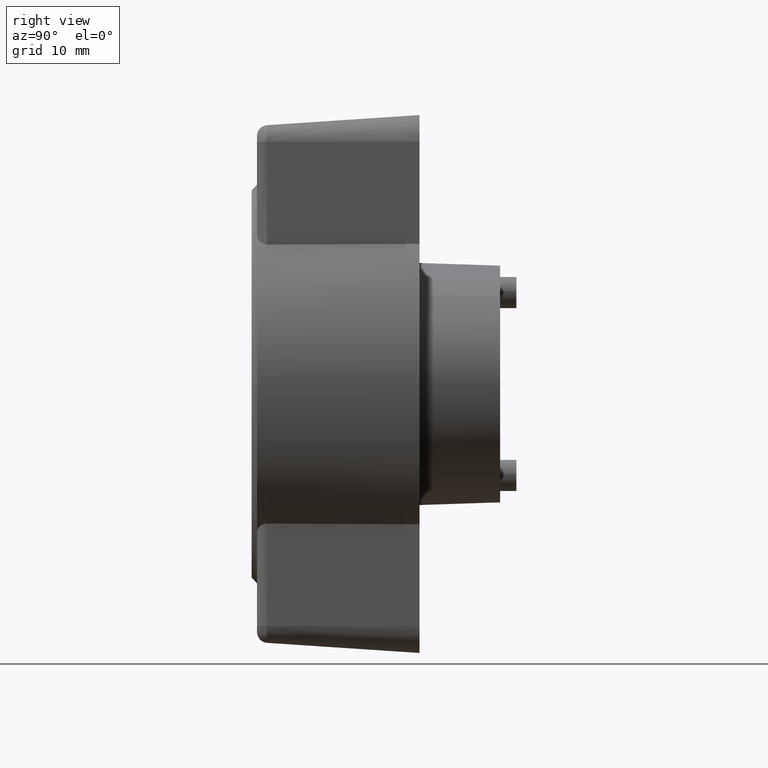
[diagram: clean part render]
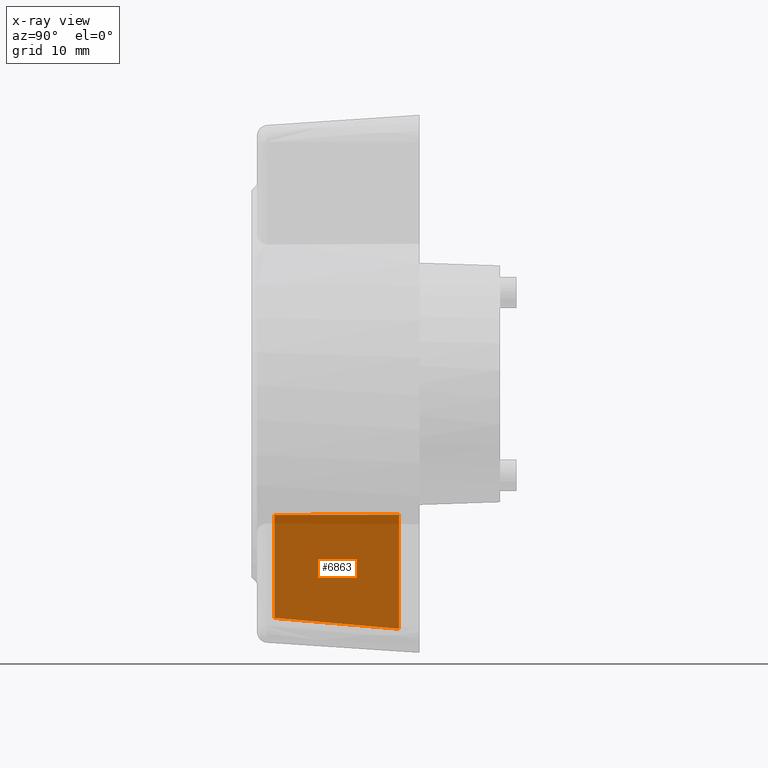
[diagram: x-ray — body ghosted, one internal face saturated and labeled with its STEP entity id]
A machine part, right view, then the same camera in x-ray: the body is ghosted and one INTERNAL B-rep face — a face not visible from any outside direction — is saturated and labeled: STEP entity #6863.
In plain terms, the highlighted face is a freeform B-spline surface patch.
Its self-contained STEP definition (entity closure, byte-faithful):
#6264=CARTESIAN_POINT('',(1.905363284608770,12.092272141014620,12.153135938464660));
#6265=VERTEX_POINT('',#6264);
#6281=CARTESIAN_POINT('',(1.905363284608745,12.092272141014719,22.679022463456501));
#6282=VERTEX_POINT('',#6281);
#6288=CARTESIAN_POINT('',(1.905363284608745,12.092272141014719,22.679022463456501));
#6289=CARTESIAN_POINT('',(1.905363284608770,12.092272141014620,12.153135938464660));
#6290=QUASI_UNIFORM_CURVE('',1,(#6288,#6289),.UNSPECIFIED.,.F.,.U.);
#6291=EDGE_CURVE('',#6282,#6265,#6290,.T.);
#6458=CARTESIAN_POINT('',(13.500000000000000,11.132456635171460,21.750000000000000));
#6459=VERTEX_POINT('',#6458);
#6465=CARTESIAN_POINT('',(2.0,12.084438020025480,22.750000000000000));
#6466=VERTEX_POINT('',#6465);
#6467=CARTESIAN_POINT('',(2.0,12.084438020025480,22.750000000000000));
#6468=CARTESIAN_POINT('',(13.500000000000000,11.132456635171460,21.750000000000000));
#6469=QUASI_UNIFORM_CURVE('',1,(#6467,#6468),.UNSPECIFIED.,.F.,.U.);
#6470=EDGE_CURVE('',#6466,#6459,#6469,.T.);
#6493=CARTESIAN_POINT('',(1.905363284608745,12.092272141014719,22.679022463456501));
#6494=CARTESIAN_POINT('',(2.0,12.084438020025480,22.750000000000000));
#6495=QUASI_UNIFORM_CURVE('',1,(#6493,#6494),.UNSPECIFIED.,.F.,.U.);
#6496=EDGE_CURVE('',#6282,#6466,#6495,.T.);
#6710=CARTESIAN_POINT('',(13.500000000000000,11.132456635171341,12.178604569693960));
#6711=VERTEX_POINT('',#6710);
#6712=CARTESIAN_POINT('',(1.905363284608770,12.092272141014620,12.153135938464660));
#6713=CARTESIAN_POINT('',(7.696613446422837,11.612866719355489,12.176274793613333));
#6714=CARTESIAN_POINT('',(13.500000000000000,11.132456635171341,12.178604569693960));
#6722=(BOUNDED_CURVE()B_SPLINE_CURVE(2,(#6712,#6713,#6714),.UNSPECIFIED.,.F.,.U.)CURVE()GEOMETRIC_REPRESENTATION_ITEM()QUASI_UNIFORM_CURVE()RATIONAL_B_SPLINE_CURVE((1.0,0.999572662275296,1.0))REPRESENTATION_ITEM(''));
#6723=EDGE_CURVE('',#6265,#6711,#6722,.T.);
#6847=CARTESIAN_POINT('',(14.079152081461141,11.084513852514769,11.623822897557080));
#6848=CARTESIAN_POINT('',(1.326210892155208,12.140214949415441,11.623822897557080));
#6849=CARTESIAN_POINT('',(14.079152081461141,11.084513852514769,23.279313609367659));
#6850=CARTESIAN_POINT('',(1.326210892155208,12.140214949415441,23.279313609367659));
#6851=B_SPLINE_SURFACE_WITH_KNOTS('',1,1,((#6847,#6849),(#6848,#6850)),.UNSPECIFIED.,.F.,.F.,.U.,(2,2),(2,2),(0.0,12.796562576875600),(0.0,11.655490711810581),.UNSPECIFIED.);
#6852=ORIENTED_EDGE('',*,*,#6291,.F.);
#6853=ORIENTED_EDGE('',*,*,#6496,.T.);
#6854=ORIENTED_EDGE('',*,*,#6470,.T.);
#6855=CARTESIAN_POINT('',(13.500000000000000,11.132456635171460,21.750000000000000));
#6856=CARTESIAN_POINT('',(13.500000000000000,11.132456635171341,12.178604569693960));
#6857=QUASI_UNIFORM_CURVE('',1,(#6855,#6856),.UNSPECIFIED.,.F.,.U.);
#6858=EDGE_CURVE('',#6459,#6711,#6857,.T.);
#6859=ORIENTED_EDGE('',*,*,#6858,.T.);
#6860=ORIENTED_EDGE('',*,*,#6723,.F.);
#6861=EDGE_LOOP('',(#6852,#6853,#6854,#6859,#6860));
#6862=FACE_OUTER_BOUND('',#6861,.T.);
#6863=ADVANCED_FACE('',(#6862),#6851,.T.);